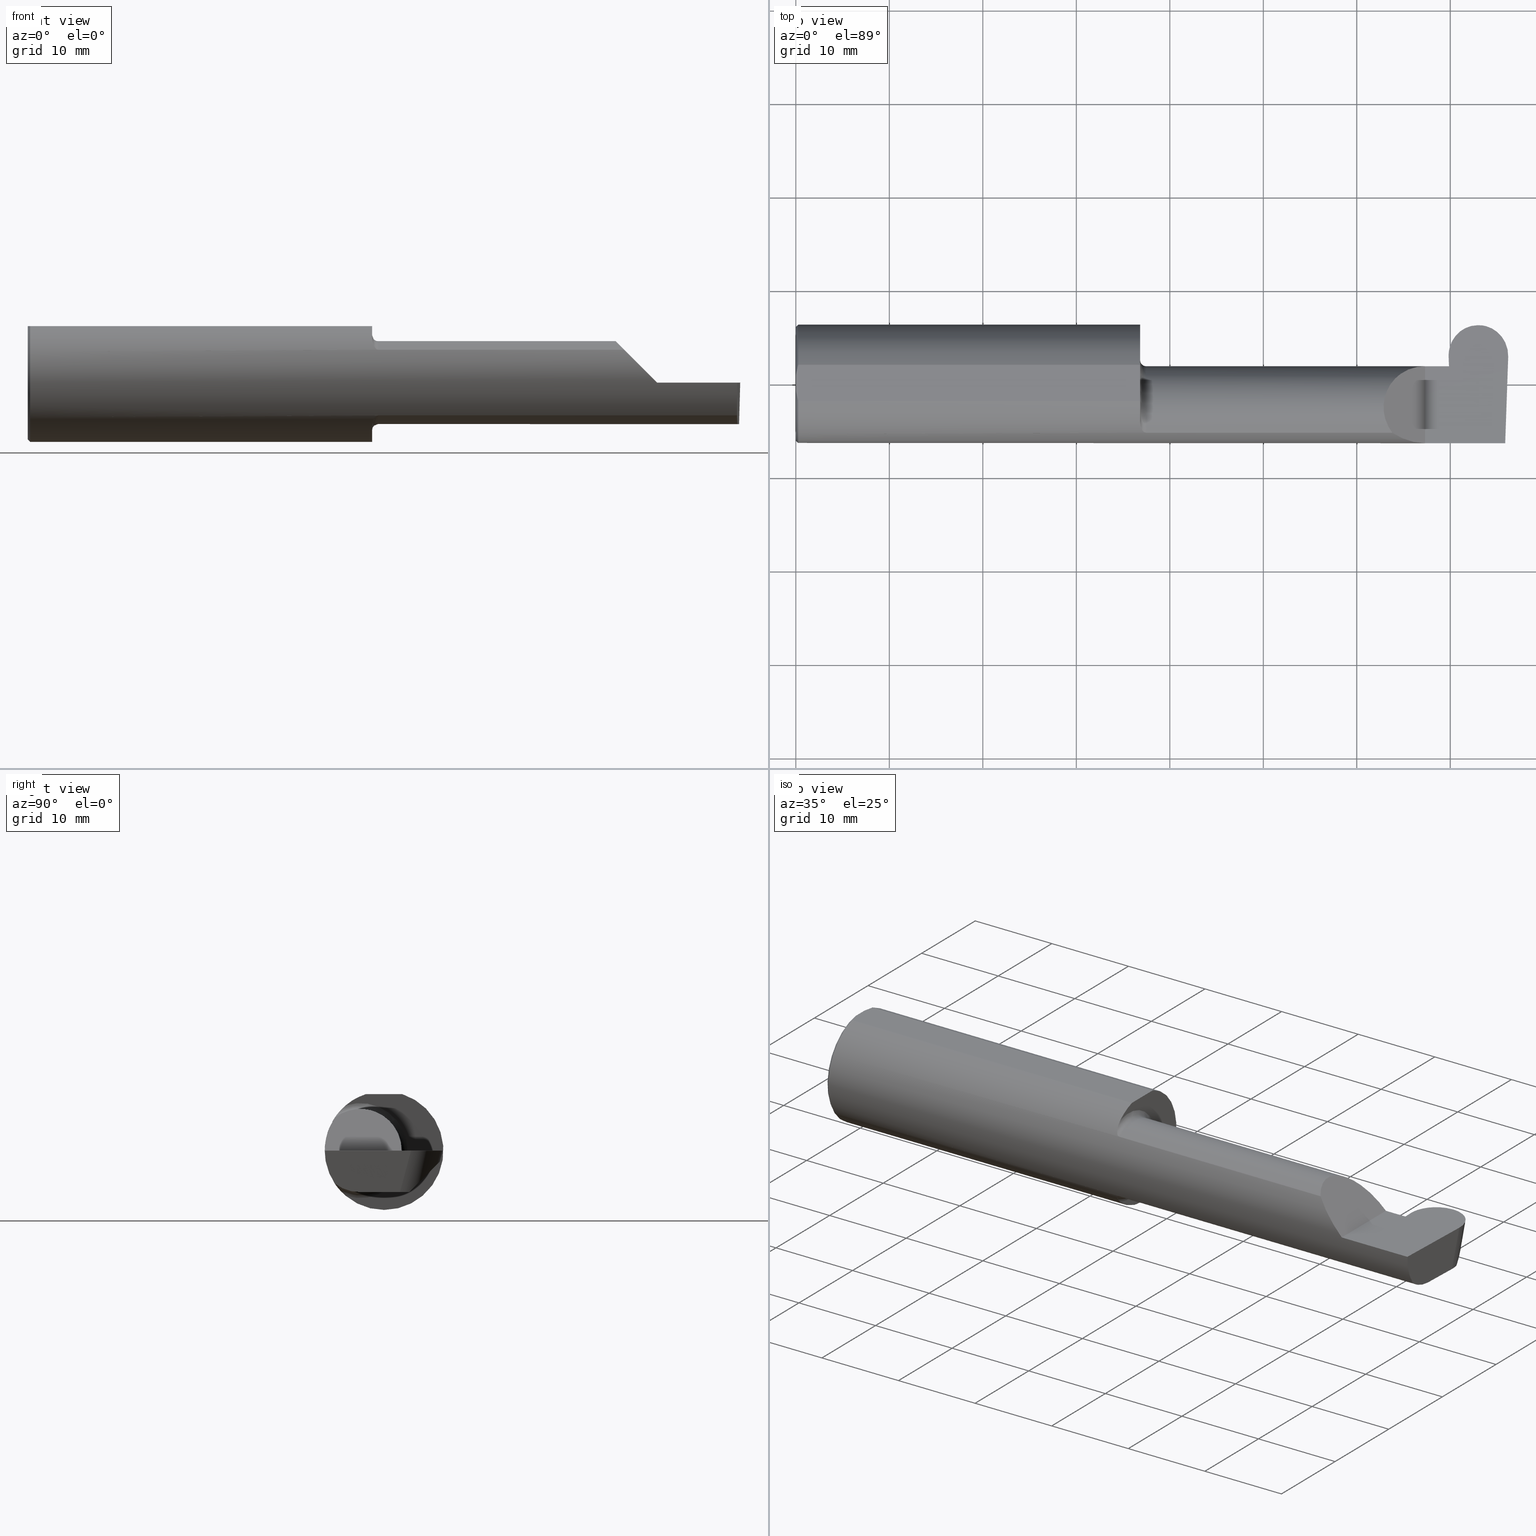
[diagram: canonical four-view strip — front | top / right | iso, engineering-drawing reading convention]
A machine part, canonical four-view strip (front | top / right | iso — engineering-drawing reading convention). The complete STEP part file that produces these views, byte-faithful:
ISO-10303-21;
HEADER;
FILE_DESCRIPTION (( 'STEP AP203' ),
    '1' );
FILE_NAME ('222527-GFR250-24.STEP',
    '2024-06-28T19:29:47',
    ( '' ),
    ( '' ),
    'SwSTEP 2.0',
    'SolidWorks 2024',
    '' );
FILE_SCHEMA (( 'CONFIG_CONTROL_DESIGN' ));
ENDSEC;

DATA;
#1 =( NAMED_UNIT ( * ) SI_UNIT ( $, .STERADIAN. ) SOLID_ANGLE_UNIT ( ) );
#2 = LINE ( 'NONE', #246, #729 ) ;
#3 = ORIENTED_EDGE ( 'NONE', *, *, #547, .F. ) ;
#4 = VECTOR ( 'NONE', #615, 39.37007874015748854 ) ;
#5 = CARTESIAN_POINT ( 'NONE',  ( 1.462579853086619419, -0.2024300470081734082, -0.1464774911482686903 ) ) ;
#6 = CC_DESIGN_APPROVAL ( #37, ( #364 ) ) ;
#7 = EDGE_LOOP ( 'NONE', ( #173, #89, #206, #583 ) ) ;
#8 = CARTESIAN_POINT ( 'NONE',  ( 1.456147634408387459, -0.1932733126899459364, -0.1584637047788198250 ) ) ;
#9 = VERTEX_POINT ( 'NONE', #16 ) ;
#10 = EDGE_CURVE ( 'NONE', #694, #307, #490, .T. ) ;
#11 = CARTESIAN_POINT ( 'NONE',  ( 2.871989500000000195, 0.2348243371481683328, -0.04599999999999999922 ) ) ;
#12 = CC_DESIGN_PERSON_AND_ORGANIZATION_ASSIGNMENT ( #552, #150, ( #297 ) ) ;
#13 = DIRECTION ( 'NONE',  ( -1.000000000000000000, -0.000000000000000000, -0.000000000000000000 ) ) ;
#14 = APPLICATION_PROTOCOL_DEFINITION ( 'international standard', 'config_control_design', 1994, #83 ) ;
#15 = CARTESIAN_POINT ( 'NONE',  ( 1.450000000000000178, 0.000000000000000000, 0.000000000000000000 ) ) ;
#16 = CARTESIAN_POINT ( 'NONE',  ( 2.989253867864499092, -0.1008499999999999119, -0.1750000000000000722 ) ) ;
#17 = ORGANIZATION ( 'UNSPECIFIED', 'UNSPECIFIED', '' ) ;
#18 = VERTEX_POINT ( 'NONE', #254 ) ;
#19 = APPLICATION_PROTOCOL_DEFINITION ( 'international standard', 'config_control_design', 1994, #298 ) ;
#20 = CARTESIAN_POINT ( 'NONE',  ( 1.462616400345755574, -0.2024684335577101590, 0.1464246884265640314 ) ) ;
#21 = DIRECTION ( 'NONE',  ( 0.000000000000000000, 0.000000000000000000, -1.000000000000000000 ) ) ;
#22 = ORIENTED_EDGE ( 'NONE', *, *, #732, .T. ) ;
#23 = PERSON_AND_ORGANIZATION_ROLE ( 'classification_officer' ) ;
#24 = CARTESIAN_POINT ( 'NONE',  ( 2.873967416046592227, 0.2348243371481683328, -0.04599999999999999922 ) ) ;
#25 = PERSON_AND_ORGANIZATION ( #230, #17 ) ;
#26 = MANIFOLD_SOLID_BREP ( 'Fillet1', #255 ) ;
#27 = ORIENTED_EDGE ( 'NONE', *, *, #570, .T. ) ;
#28 = AXIS2_PLACEMENT_3D ( 'NONE', #622, #286, #728 ) ;
#29 = VERTEX_POINT ( 'NONE', #546 ) ;
#30 = COORDINATED_UNIVERSAL_TIME_OFFSET ( 8, 0, .BEHIND. ) ;
#31 = LINE ( 'NONE', #550, #309 ) ;
#32 = ORIENTED_EDGE ( 'NONE', *, *, #130, .T. ) ;
#33 = COORDINATED_UNIVERSAL_TIME_OFFSET ( 8, 0, .BEHIND. ) ;
#34 = ADVANCED_FACE ( 'NONE', ( #362 ), #633, .T. ) ;
#35 = LINE ( 'NONE', #329, #395 ) ;
#36 = DIRECTION ( 'NONE',  ( 0.000000000000000000, -0.2588190451025209060, -0.9659258262890682012 ) ) ;
#37 = APPROVAL ( #202, 'UNSPECIFIED' ) ;
#38 = ORIENTED_EDGE ( 'NONE', *, *, #77, .F. ) ;
#39 = LINE ( 'NONE', #451, #183 ) ;
#40 = EDGE_CURVE ( 'NONE', #396, #605, #603, .T. ) ;
#41 = LINE ( 'NONE', #110, #4 ) ;
#42 = EDGE_LOOP ( 'NONE', ( #626, #417, #556 ) ) ;
#43 = PRODUCT_RELATED_PRODUCT_CATEGORY ( 'detail', '', ( #277 ) ) ;
#44 = FACE_OUTER_BOUND ( 'NONE', #569, .T. ) ;
#45 = VECTOR ( 'NONE', #502, 39.37007874015748854 ) ;
#46 = EDGE_CURVE ( 'NONE', #343, #18, #316, .T. ) ;
#47 = CARTESIAN_POINT ( 'NONE',  ( 1.474999999999999867, -0.1008500000000001201, 0.000000000000000000 ) ) ;
#48 = ORIENTED_EDGE ( 'NONE', *, *, #381, .T. ) ;
#49 = DIRECTION ( 'NONE',  ( -1.000000000000000000, -7.887675390231430346E-17, -0.000000000000000000 ) ) ;
#50 = DIRECTION ( 'NONE',  ( -1.000000000000000000, -7.887675390231430346E-17, -0.000000000000000000 ) ) ;
#51 = VERTEX_POINT ( 'NONE', #85 ) ;
#52 = EDGE_CURVE ( 'NONE', #225, #682, #589, .T. ) ;
#53 = LINE ( 'NONE', #740, #669 ) ;
#54 = CARTESIAN_POINT ( 'NONE',  ( 2.748789500000000441, 0.1262550149847267988, -0.01380122061147884271 ) ) ;
#55 = EDGE_LOOP ( 'NONE', ( #739, #268, #27, #564, #465, #433, #124, #107, #518, #610, #662, #185, #311 ) ) ;
#56 = CARTESIAN_POINT ( 'NONE',  ( 2.750367999175829414, 0.07414999999999984104, 0.000000000000000000 ) ) ;
#57 = AXIS2_PLACEMENT_3D ( 'NONE', #443, #161, #332 ) ;
#58 =( GEOMETRIC_REPRESENTATION_CONTEXT ( 3 ) GLOBAL_UNCERTAINTY_ASSIGNED_CONTEXT ( ( #690 ) ) GLOBAL_UNIT_ASSIGNED_CONTEXT ( ( #358, #252, #1 ) ) REPRESENTATION_CONTEXT ( 'NONE', 'WORKASPACE' ) );
#59 = DIRECTION ( 'NONE',  ( -0.9992386149554828290, 0.03489418134010812550, 0.01745240643728358798 ) ) ;
#60 = ORIENTED_EDGE ( 'NONE', *, *, #256, .T. ) ;
#61 = CARTESIAN_POINT ( 'NONE',  ( 2.871989500000000195, 0.2471499999999999808, 0.000000000000000000 ) ) ;
#62 = EDGE_CURVE ( 'NONE', #300, #731, #79, .T. ) ;
#63 = DIRECTION ( 'NONE',  ( -1.000000000000000000, -7.887675390231430346E-17, 0.000000000000000000 ) ) ;
#64 = VERTEX_POINT ( 'NONE', #320 ) ;
#65 = LENGTH_MEASURE_WITH_UNIT ( LENGTH_MEASURE( 0.02539999999999999897 ), #590 );
#66 = CARTESIAN_POINT ( 'NONE',  ( 2.999923484675441010, 0.1171611899918090643, 0.000000000000000000 ) ) ;
#67 = ORIENTED_EDGE ( 'NONE', *, *, #256, .F. ) ;
#68 = CARTESIAN_POINT ( 'NONE',  ( 2.753013396079577735, 0.1058243371481696476, -0.1750000000000001277 ) ) ;
#69 = AXIS2_PLACEMENT_3D ( 'NONE', #323, #604, #440 ) ;
#70 = AXIS2_PLACEMENT_3D ( 'NONE', #627, #49, #614 ) ;
#71 = CARTESIAN_POINT ( 'NONE',  ( 2.748789500000000441, 0.1195161796598800813, -0.0003276550781925943192 ) ) ;
#72 = EDGE_CURVE ( 'NONE', #413, #689, #392, .T. ) ;
#73 = EDGE_LOOP ( 'NONE', ( #337, #410, #264, #449, #505, #67 ) ) ;
#74 = CARTESIAN_POINT ( 'NONE',  ( 2.650000000000000355, 0.07415000000000000757, 1.898202538678394994E-16 ) ) ;
#75 = CARTESIAN_POINT ( 'NONE',  ( 1.450000000000000178, -0.1616050818046603221, 0.1905487340154980724 ) ) ;
#76 = ORIENTED_EDGE ( 'NONE', *, *, #491, .T. ) ;
#77 = EDGE_CURVE ( 'NONE', #642, #586, #120, .T. ) ;
#78 = DIRECTION ( 'NONE',  ( 1.000000000000000000, 7.887675390231430346E-17, 0.000000000000000000 ) ) ;
#79 = LINE ( 'NONE', #194, #326 ) ;
#80 = ORIENTED_EDGE ( 'NONE', *, *, #52, .F. ) ;
#81 = CALENDAR_DATE ( 2024, 28, 6 ) ;
#82 = CARTESIAN_POINT ( 'NONE',  ( 1.458182335268384477, -0.1972192205116129748, 0.1535061413537211761 ) ) ;
#83 = APPLICATION_CONTEXT ( 'configuration controlled 3d designs of mechanical parts and assemblies' ) ;
#84 = VECTOR ( 'NONE', #168, 39.37007874015748143 ) ;
#85 = CARTESIAN_POINT ( 'NONE',  ( 2.995099234303557623, 0.06653939388036611557, -0.1750000000000001277 ) ) ;
#86 = CIRCLE ( 'NONE', #599, 0.2498499999999999888 ) ;
#87 = LOCAL_TIME ( 12, 29, 47.00000000000000000, #97 ) ;
#88 = DATE_AND_TIME ( #81, #147 ) ;
#89 = ORIENTED_EDGE ( 'NONE', *, *, #238, .F. ) ;
#90 = EDGE_LOOP ( 'NONE', ( #350, #369, #288, #492, #621 ) ) ;
#91 = PERSON_AND_ORGANIZATION ( #230, #17 ) ;
#92 = CARTESIAN_POINT ( 'NONE',  ( 2.650000000000000355, 0.07415000000000000757, 1.898202538678394994E-16 ) ) ;
#93 = EDGE_CURVE ( 'NONE', #682, #601, #259, .T. ) ;
#94 = CARTESIAN_POINT ( 'NONE',  ( 2.987107171508847081, -0.2498499999999999888, 0.000000000000000000 ) ) ;
#95 = AXIS2_PLACEMENT_3D ( 'NONE', #66, #59, #464 ) ;
#96 = ORIENTED_EDGE ( 'NONE', *, *, #314, .T. ) ;
#97 = COORDINATED_UNIVERSAL_TIME_OFFSET ( 8, 0, .BEHIND. ) ;
#98 = CARTESIAN_POINT ( 'NONE',  ( 1.451849548162864600, -0.1805300287242673496, 0.1728462070311781729 ) ) ;
#99 = FACE_OUTER_BOUND ( 'NONE', #235, .T. ) ;
#100 = VERTEX_POINT ( 'NONE', #427 ) ;
#101 = LINE ( 'NONE', #155, #702 ) ;
#102 = ADVANCED_FACE ( 'NONE', ( #487 ), #418, .T. ) ;
#103 = DIRECTION ( 'NONE',  ( 0.9998367324388628408, 0.0003153570480505128921, 0.01806679318280336732 ) ) ;
#104 = ORIENTED_EDGE ( 'NONE', *, *, #46, .T. ) ;
#105 = DIRECTION ( 'NONE',  ( 1.000000000000000000, 0.000000000000000000, 0.000000000000000000 ) ) ;
#106 = EDGE_CURVE ( 'NONE', #396, #333, #711, .T. ) ;
#107 = ORIENTED_EDGE ( 'NONE', *, *, #325, .F. ) ;
#108 = VECTOR ( 'NONE', #661, 39.37007874015748143 ) ;
#109 = DIRECTION ( 'NONE',  ( -1.000000000000000000, -0.000000000000000000, -0.000000000000000000 ) ) ;
#110 = CARTESIAN_POINT ( 'NONE',  ( 2.760318370161228163, -0.1232646843588793423, -0.1750000000000000722 ) ) ;
#111 = ORIENTED_EDGE ( 'NONE', *, *, #439, .T. ) ;
#112 = CARTESIAN_POINT ( 'NONE',  ( 2.999793206199442785, 0.1134305025558126762, 0.000000000000000000 ) ) ;
#113 = DIRECTION ( 'NONE',  ( -0.03489949670249542502, -0.9993908270190959842, 1.222058880457094394E-16 ) ) ;
#114 = EDGE_LOOP ( 'NONE', ( #508, #461, #213, #304 ) ) ;
#115 = CARTESIAN_POINT ( 'NONE',  ( 2.739326706053758276, 0.07414999999999984104, 0.000000000000000000 ) ) ;
#116 = CARTESIAN_POINT ( 'NONE',  ( 2.748789500000000441, 0.1196039745734777809, 3.076441347372056086E-17 ) ) ;
#117 = VERTEX_POINT ( 'NONE', #596 ) ;
#118 = EDGE_CURVE ( 'NONE', #51, #542, #201, .T. ) ;
#119 = DIRECTION ( 'NONE',  ( 1.000000000000000000, 7.887675390231430346E-17, 0.000000000000000000 ) ) ;
#120 =( BOUNDED_CURVE ( )  B_SPLINE_CURVE ( 3, ( #24, #373, #718, #262 ),
 .UNSPECIFIED., .F., .F. ) 
 B_SPLINE_CURVE_WITH_KNOTS ( ( 4, 4 ),
 ( 3.126640370658176682, 4.420746632591429304 ),
 .UNSPECIFIED. ) 
 CURVE ( )  GEOMETRIC_REPRESENTATION_ITEM ( )  RATIONAL_B_SPLINE_CURVE ( ( 1.000000000000000000, 0.8652424962921516638, 0.8652424962921516638, 1.000000000000000000 ) ) 
 REPRESENTATION_ITEM ( '' )  );
#121 = VECTOR ( 'NONE', #421, 39.37007874015748854 ) ;
#122 = CC_DESIGN_APPROVAL ( #154, ( #297 ) ) ;
#123 = DIRECTION ( 'NONE',  ( 1.000000000000000000, 0.000000000000000000, 0.000000000000000000 ) ) ;
#124 = ORIENTED_EDGE ( 'NONE', *, *, #439, .F. ) ;
#125 = CARTESIAN_POINT ( 'NONE',  ( 2.768056554299977989, 0.1849635101964373640, -0.09586082695173156476 ) ) ;
#126 = ADVANCED_FACE ( 'NONE', ( #654 ), #266, .F. ) ;
#127 = CARTESIAN_POINT ( 'NONE',  ( 2.750478392166241903, 0.07404339472834139957, -0.006107411922948607387 ) ) ;
#128 = EDGE_LOOP ( 'NONE', ( #613, #496, #357, #526, #658, #575, #389, #659, #385, #331 ) ) ;
#129 = CARTESIAN_POINT ( 'NONE',  ( 2.752403753671178954, 0.1033802780873585986, -0.1750000000000001277 ) ) ;
#130 = EDGE_CURVE ( 'NONE', #721, #117, #330, .T. ) ;
#131 = FACE_OUTER_BOUND ( 'NONE', #90, .T. ) ;
#132 = B_SPLINE_CURVE_WITH_KNOTS ( 'NONE', 3,
 ( #75, #699, #595, #98, #190, #541, #82, #20, #261, #647, #723, #383, #483, #215 ),
 .UNSPECIFIED., .F., .F.,
 ( 4, 2, 2, 2, 2, 2, 4 ),
 ( 0.0003834465838148139985, 0.0008781406165086578369, 0.001372834649202501513, 0.001867528681896345405, 0.002114875698243272231, 0.002238549206416742040, 0.002362222714590212283 ),
 .UNSPECIFIED. ) ;
#133 = ORIENTED_EDGE ( 'NONE', *, *, #339, .T. ) ;
#134 = FACE_OUTER_BOUND ( 'NONE', #128, .T. ) ;
#135 = DIRECTION ( 'NONE',  ( -0.01806954526206910883, 0.01744955702544859211, 0.9996844524616943506 ) ) ;
#136 = ORIENTED_EDGE ( 'NONE', *, *, #450, .T. ) ;
#137 = EDGE_CURVE ( 'NONE', #689, #29, #165, .T. ) ;
#138 = DIRECTION ( 'NONE',  ( 0.000000000000000000, 1.000000000000000000, 0.000000000000000000 ) ) ;
#139 = DIRECTION ( 'NONE',  ( 1.000000000000000000, 0.000000000000000000, 0.000000000000000000 ) ) ;
#140 = CARTESIAN_POINT ( 'NONE',  ( 2.753013396079577735, 0.1058243371481696476, -0.1750000000000001277 ) ) ;
#141 = CARTESIAN_POINT ( 'NONE',  ( 2.873272513379383497, 0.2278825068156204725, -0.07190726349859134781 ) ) ;
#142 = ORIENTED_EDGE ( 'NONE', *, *, #648, .T. ) ;
#143 = ORIENTED_EDGE ( 'NONE', *, *, #685, .T. ) ;
#144 =( BOUNDED_CURVE ( )  B_SPLINE_CURVE ( 3, ( #386, #568, #560, #281 ),
 .UNSPECIFIED., .F., .F. ) 
 B_SPLINE_CURVE_WITH_KNOTS ( ( 4, 4 ),
 ( -8.881784197001252323E-16, 1.570796326794896780 ),
 .UNSPECIFIED. ) 
 CURVE ( )  GEOMETRIC_REPRESENTATION_ITEM ( )  RATIONAL_B_SPLINE_CURVE ( ( 1.000000000000000000, 0.8047378541243646044, 0.8047378541243646044, 1.000000000000000000 ) ) 
 REPRESENTATION_ITEM ( '' )  );
#145 = ORIENTED_EDGE ( 'NONE', *, *, #660, .T. ) ;
#146 = VECTOR ( 'NONE', #195, 39.37007874015748854 ) ;
#147 = LOCAL_TIME ( 12, 29, 47.00000000000000000, #30 ) ;
#148 = CALENDAR_DATE ( 2024, 28, 6 ) ;
#149 = CARTESIAN_POINT ( 'NONE',  ( 2.111894750000000265, -0.2080850024789289432, -0.1382955322609668858 ) ) ;
#150 = PERSON_AND_ORGANIZATION_ROLE ( 'design_supplier' ) ;
#151 = ADVANCED_FACE ( 'NONE', ( #99 ), #375, .F. ) ;
#152 = CARTESIAN_POINT ( 'NONE',  ( 2.748789500000000441, 0.1195161796598800813, -0.0003276550781925943192 ) ) ;
#153 = CALENDAR_DATE ( 2024, 28, 6 ) ;
#154 = APPROVAL ( #486, 'UNSPECIFIED' ) ;
#155 = CARTESIAN_POINT ( 'NONE',  ( 2.750367999175829414, 0.07414999999999984104, 0.000000000000000000 ) ) ;
#156 = CARTESIAN_POINT ( 'NONE',  ( 0.009999999999999927350, -0.07650098038587520299, 0.2378499999999998671 ) ) ;
#157 = CIRCLE ( 'NONE', #218, 0.2498499999999999888 ) ;
#158 = ORIENTED_EDGE ( 'NONE', *, *, #175, .F. ) ;
#159 = PERSON_AND_ORGANIZATION ( #230, #17 ) ;
#160 = ADVANCED_FACE ( 'NONE', ( #566 ), #612, .F. ) ;
#161 = DIRECTION ( 'NONE',  ( -1.000000000000000000, -0.000000000000000000, -0.000000000000000000 ) ) ;
#162 = CARTESIAN_POINT ( 'NONE',  ( -3.937007874019685528E-05, 0.2471499999999999808, 0.000000000000000000 ) ) ;
#163 = VERTEX_POINT ( 'NONE', #152 ) ;
#164 = FACE_OUTER_BOUND ( 'NONE', #42, .T. ) ;
#165 = LINE ( 'NONE', #335, #84 ) ;
#166 = ORIENTED_EDGE ( 'NONE', *, *, #423, .F. ) ;
#167 = CARTESIAN_POINT ( 'NONE',  ( 2.985913134503198840, -0.2355204011147991605, -0.09701513151466768792 ) ) ;
#168 = DIRECTION ( 'NONE',  ( 1.000000000000000000, 7.887675390231430346E-17, 0.000000000000000000 ) ) ;
#169 = ORIENTED_EDGE ( 'NONE', *, *, #40, .T. ) ;
#170 = TOROIDAL_SURFACE ( 'NONE', #318, 0.1999999999999999833, 0.02499999999999993894 ) ;
#171 = PLANE ( 'NONE',  #28 ) ;
#172 = CARTESIAN_POINT ( 'NONE',  ( 1.464302603425052363, -0.2041009206016212163, -0.1441313430770041759 ) ) ;
#173 = ORIENTED_EDGE ( 'NONE', *, *, #62, .F. ) ;
#174 = DIRECTION ( 'NONE',  ( -0.000000000000000000, 1.000000000000000000, -0.000000000000000000 ) ) ;
#175 = EDGE_CURVE ( 'NONE', #343, #9, #472, .T. ) ;
#176 = CARTESIAN_POINT ( 'NONE',  ( 1.451385488563269988, -0.1808287530430324752, -0.1728790649396288459 ) ) ;
#177 = ORIENTED_EDGE ( 'NONE', *, *, #339, .F. ) ;
#178 = LINE ( 'NONE', #226, #479 ) ;
#179 = CARTESIAN_POINT ( 'NONE',  ( -3.937007874019685528E-05, 0.2348243371481683328, -0.04599999999999999922 ) ) ;
#180 = ORIENTED_EDGE ( 'NONE', *, *, #72, .T. ) ;
#181 = ADVANCED_FACE ( 'NONE', ( #290 ), #212, .F. ) ;
#182 = CARTESIAN_POINT ( 'NONE',  ( 0.000000000000000000, 0.000000000000000000, 0.000000000000000000 ) ) ;
#183 = VECTOR ( 'NONE', #506, 39.37007874015748143 ) ;
#184 = CARTESIAN_POINT ( 'NONE',  ( 0.000000000000000000, 0.000000000000000000, -0.2398500000000001742 ) ) ;
#185 = ORIENTED_EDGE ( 'NONE', *, *, #648, .F. ) ;
#186 = DIRECTION ( 'NONE',  ( 1.000000000000000000, 0.000000000000000000, 0.000000000000000000 ) ) ;
#187 = CARTESIAN_POINT ( 'NONE',  ( 1.450000000000000178, -0.1616050818046603221, -0.1905487340154980724 ) ) ;
#188 = ORIENTED_EDGE ( 'NONE', *, *, #197, .T. ) ;
#189 = FACE_OUTER_BOUND ( 'NONE', #73, .T. ) ;
#190 = CARTESIAN_POINT ( 'NONE',  ( 1.452968662030528879, -0.1849684355203377040, 0.1680843977756269203 ) ) ;
#191 = EDGE_CURVE ( 'NONE', #239, #204, #453, .T. ) ;
#192 = VERTEX_POINT ( 'NONE', #94 ) ;
#193 = DIRECTION ( 'NONE',  ( 0.000000000000000000, -1.000000000000000000, 1.223176342469858371E-16 ) ) ;
#194 = CARTESIAN_POINT ( 'NONE',  ( 0.000000000000000000, 0.000000000000000000, -0.2398500000000001742 ) ) ;
#195 = DIRECTION ( 'NONE',  ( -2.041480612578352346E-17, 0.2588190451025209060, 0.9659258262890682012 ) ) ;
#196 = DIRECTION ( 'NONE',  ( -1.000000000000000000, -0.000000000000000000, -0.000000000000000000 ) ) ;
#197 = EDGE_CURVE ( 'NONE', #100, #445, #41, .T. ) ;
#198 =( BOUNDED_CURVE ( )  B_SPLINE_CURVE ( 3, ( #710, #611, #644, #591 ),
 .UNSPECIFIED., .F., .F. ) 
 B_SPLINE_CURVE_WITH_KNOTS ( ( 4, 4 ),
 ( 4.339337998362998050, 4.645220385064936508 ),
 .UNSPECIFIED. ) 
 CURVE ( )  GEOMETRIC_REPRESENTATION_ITEM ( )  RATIONAL_B_SPLINE_CURVE ( ( 1.000000000000000000, 0.9922181835937360361, 0.9922181835937360361, 1.000000000000000000 ) ) 
 REPRESENTATION_ITEM ( '' )  );
#199 = CARTESIAN_POINT ( 'NONE',  ( 0.000000000000000000, 0.07650098038587520299, 0.2378499999999998671 ) ) ;
#200 = CARTESIAN_POINT ( 'NONE',  ( 2.753585400763539415, -0.1008500000000000091, -0.1750000000000000444 ) ) ;
#201 = LINE ( 'NONE', #321, #700 ) ;
#202 = APPROVAL_STATUS ( 'not_yet_approved' ) ;
#203 = AXIS2_PLACEMENT_3D ( 'NONE', #348, #63, #681 ) ;
#204 = VERTEX_POINT ( 'NONE', #394 ) ;
#205 = EDGE_CURVE ( 'NONE', #204, #601, #361, .T. ) ;
#206 = ORIENTED_EDGE ( 'NONE', *, *, #205, .T. ) ;
#207 = PERSON_AND_ORGANIZATION ( #230, #17 ) ;
#208 = EDGE_CURVE ( 'NONE', #605, #694, #31, .T. ) ;
#209 = DIRECTION ( 'NONE',  ( -7.887675390231430346E-17, 1.000000000000000000, 0.000000000000000000 ) ) ;
#210 = EDGE_LOOP ( 'NONE', ( #529, #279, #436, #400, #177, #671 ) ) ;
#211 = PRODUCT_DEFINITION_SHAPE ( 'NONE', 'NONE',  #364 ) ;
#212 = PLANE ( 'NONE',  #727 ) ;
#213 = ORIENTED_EDGE ( 'NONE', *, *, #399, .T. ) ;
#214 = SHAPE_DEFINITION_REPRESENTATION ( #211, #533 ) ;
#215 = CARTESIAN_POINT ( 'NONE',  ( 1.474999999999999867, -0.2080850024789289432, 0.1382955322609669413 ) ) ;
#216 = CARTESIAN_POINT ( 'NONE',  ( -3.937007874019685528E-05, 0.2471499999999999808, 0.000000000000000000 ) ) ;
#217 = AXIS2_PLACEMENT_3D ( 'NONE', #162, #555, #36 ) ;
#218 = AXIS2_PLACEMENT_3D ( 'NONE', #743, #565, #390 ) ;
#219 = ORIENTED_EDGE ( 'NONE', *, *, #423, .T. ) ;
#220 = LINE ( 'NONE', #223, #45 ) ;
#221 = CARTESIAN_POINT ( 'NONE',  ( 0.000000000000000000, -0.03090954545120560767, 0.2378499999999998671 ) ) ;
#222 = EDGE_LOOP ( 'NONE', ( #188, #22, #639, #219, #636, #294, #271 ) ) ;
#223 = CARTESIAN_POINT ( 'NONE',  ( 2.748789500000000441, 0.1158222753493551166, -0.01411349364336943364 ) ) ;
#224 = DIRECTION ( 'NONE',  ( -0.000000000000000000, 1.000000000000000000, -0.000000000000000000 ) ) ;
#225 = VERTEX_POINT ( 'NONE', #620 ) ;
#226 = CARTESIAN_POINT ( 'NONE',  ( 2.748789500000000441, 0.1454645653348735079, -0.05220861937271876335 ) ) ;
#227 = CARTESIAN_POINT ( 'NONE',  ( 0.000000000000000000, 0.03090954545120574992, 0.2378499999999998671 ) ) ;
#228 = EDGE_LOOP ( 'NONE', ( #666, #133, #482, #478, #169, #532 ) ) ;
#229 = AXIS2_PLACEMENT_3D ( 'NONE', #270, #374, #21 ) ;
#230 = PERSON ( 'UNSPECIFIED', 'UNSPECIFIED', 'UNSPECIFIED', ('UNSPECIFIED'), ('UNSPECIFIED'), ('UNSPECIFIED') ) ;
#231 = VECTOR ( 'NONE', #241, 39.37007874015748143 ) ;
#232 = CARTESIAN_POINT ( 'NONE',  ( 2.873967416046592227, 0.2348243371481683328, -0.04599999999999999922 ) ) ;
#233 = EDGE_CURVE ( 'NONE', #354, #586, #504, .T. ) ;
#234 = CARTESIAN_POINT ( 'NONE',  ( 1.468863362722771182, -0.2068301641248769251, -0.1401678546132362480 ) ) ;
#235 = EDGE_LOOP ( 'NONE', ( #285, #143, #32, #76 ) ) ;
#236 = DIRECTION ( 'NONE',  ( 0.000000000000000000, 1.000000000000000000, 0.000000000000000000 ) ) ;
#237 = CARTESIAN_POINT ( 'NONE',  ( 2.875201260087796307, 0.2471499999999999808, 0.000000000000000000 ) ) ;
#238 = EDGE_CURVE ( 'NONE', #204, #300, #716, .T. ) ;
#239 = VERTEX_POINT ( 'NONE', #221 ) ;
#240 = CARTESIAN_POINT ( 'NONE',  ( 2.752599177285632415, 0.1041970330334761607, -0.1750000000000001277 ) ) ;
#241 = DIRECTION ( 'NONE',  ( -1.000000000000000000, -0.000000000000000000, -0.000000000000000000 ) ) ;
#242 = VERTEX_POINT ( 'NONE', #448 ) ;
#243 = FACE_OUTER_BOUND ( 'NONE', #467, .T. ) ;
#244 = AXIS2_PLACEMENT_3D ( 'NONE', #578, #684, #398 ) ;
#245 = AXIS2_PLACEMENT_3D ( 'NONE', #475, #646, #691 ) ;
#246 = CARTESIAN_POINT ( 'NONE',  ( 0.000000000000000000, -0.07650098038587520299, 0.2378499999999998671 ) ) ;
#247 = EDGE_LOOP ( 'NONE', ( #745, #597, #512, #476 ) ) ;
#248 = DIRECTION ( 'NONE',  ( 1.000000000000000000, 0.000000000000000000, -0.000000000000000000 ) ) ;
#249 = ADVANCED_FACE ( 'NONE', ( #673 ), #170, .F. ) ;
#250 = LINE ( 'NONE', #624, #516 ) ;
#251 = EDGE_LOOP ( 'NONE', ( #104, #3, #48, #180, #291, #726, #616, #697, #707, #158 ) ) ;
#252 =( NAMED_UNIT ( * ) PLANE_ANGLE_UNIT ( ) SI_UNIT ( $, .RADIAN. ) );
#253 = FACE_OUTER_BOUND ( 'NONE', #55, .T. ) ;
#254 = CARTESIAN_POINT ( 'NONE',  ( 1.474999999999999867, -0.2080850024789288044, -0.1382955322609669968 ) ) ;
#255 = CLOSED_SHELL ( 'NONE', ( #34, #593, #344, #474, #600, #712, #736, #678, #102, #249, #391, #534, #463, #151, #126, #160, #272, #181, #724, #267 ) ) ;
#256 = EDGE_CURVE ( 'NONE', #458, #239, #280, .T. ) ;
#257 = VECTOR ( 'NONE', #634, 39.37007874015748143 ) ;
#258 = PLANE ( 'NONE',  #359 ) ;
#259 = LINE ( 'NONE', #199, #715 ) ;
#260 = APPROVAL_STATUS ( 'not_yet_approved' ) ;
#261 = CARTESIAN_POINT ( 'NONE',  ( 1.464343523383979218, -0.2041337200786081940, 0.1440846171672514608 ) ) ;
#262 = CARTESIAN_POINT ( 'NONE',  ( 2.990641147540828104, 0.1058243371481696476, -0.1750000000000001277 ) ) ;
#263 = EDGE_CURVE ( 'NONE', #542, #117, #276, .T. ) ;
#264 = ORIENTED_EDGE ( 'NONE', *, *, #93, .T. ) ;
#265 = DATE_AND_TIME ( #153, #517 ) ;
#266 = PLANE ( 'NONE',  #69 ) ;
#267 = ADVANCED_FACE ( 'NONE', ( #563 ), #404, .T. ) ;
#268 = ORIENTED_EDGE ( 'NONE', *, *, #577, .T. ) ;
#269 = CIRCLE ( 'NONE', #70, 0.1750000000000000444 ) ;
#270 = CARTESIAN_POINT ( 'NONE',  ( 0.000000000000000000, 0.000000000000000000, 0.000000000000000000 ) ) ;
#271 = ORIENTED_EDGE ( 'NONE', *, *, #602, .T. ) ;
#272 = ADVANCED_FACE ( 'NONE', ( #131 ), #641, .F. ) ;
#273 = CARTESIAN_POINT ( 'NONE',  ( -3.937007874019685528E-05, 0.1058243371481696476, -0.1750000000000001277 ) ) ;
#274 = VERTEX_POINT ( 'NONE', #688 ) ;
#275 = DATE_AND_TIME ( #497, #87 ) ;
#276 =( BOUNDED_CURVE ( )  B_SPLINE_CURVE ( 3, ( #412, #582, #572, #237 ),
 .UNSPECIFIED., .F., .F. ) 
 B_SPLINE_CURVE_WITH_KNOTS ( ( 4, 4 ),
 ( 1.637964922114649946, 3.237953570749840360 ),
 .UNSPECIFIED. ) 
 CURVE ( )  GEOMETRIC_REPRESENTATION_ITEM ( )  RATIONAL_B_SPLINE_CURVE ( ( 1.000000000000000000, 0.7978071872141911935, 0.7978071872141911935, 1.000000000000000000 ) ) 
 REPRESENTATION_ITEM ( '' )  );
#277 = PRODUCT ( '222527-GFR250-24', '222527-GFR250-24', '', ( #301 ) ) ;
#278 = CARTESIAN_POINT ( 'NONE',  ( 2.754531504291869659, -2.688765469242836659, -0.1821862048796526190 ) ) ;
#279 = ORIENTED_EDGE ( 'NONE', *, *, #685, .F. ) ;
#280 = B_SPLINE_CURVE_WITH_KNOTS ( 'NONE', 3,
 ( #156, #456, #494, #720 ),
 .UNSPECIFIED., .F., .F.,
 ( 4, 4 ),
 ( 0.01317593029100226111, 0.01435802289191457325 ),
 .UNSPECIFIED. ) ;
#281 = CARTESIAN_POINT ( 'NONE',  ( 2.748789500000000441, 0.1196039745734777809, 3.076441347372056086E-17 ) ) ;
#282 = DIMENSIONAL_EXPONENTS ( 1.000000000000000000, 0.000000000000000000, 0.000000000000000000, 0.000000000000000000, 0.000000000000000000, 0.000000000000000000, 0.000000000000000000 ) ;
#283 = DIRECTION ( 'NONE',  ( -0.03489949670249486990, 0.9993908270190959842, -0.000000000000000000 ) ) ;
#284 = CIRCLE ( 'NONE', #371, 0.2498499999999999888 ) ;
#285 = ORIENTED_EDGE ( 'NONE', *, *, #314, .F. ) ;
#286 = DIRECTION ( 'NONE',  ( -0.7071067811865439090, 0.000000000000000000, -0.7071067811865511255 ) ) ;
#287 = DIRECTION ( 'NONE',  ( 7.887675390231430346E-17, -1.000000000000000000, 0.000000000000000000 ) ) ;
#288 = ORIENTED_EDGE ( 'NONE', *, *, #528, .T. ) ;
#289 = DIRECTION ( 'NONE',  ( -0.0003154085283454350426, 0.9999999502587288980, -1.223178646569383192E-16 ) ) ;
#290 = FACE_OUTER_BOUND ( 'NONE', #347, .T. ) ;
#291 = ORIENTED_EDGE ( 'NONE', *, *, #137, .T. ) ;
#292 = CARTESIAN_POINT ( 'NONE',  ( 2.739291170963205069, 0.07411446490944702259, -0.002035803974316283561 ) ) ;
#293 = CARTESIAN_POINT ( 'NONE',  ( 2.752403753671178954, 0.1033802780873585986, -0.1750000000000001277 ) ) ;
#294 = ORIENTED_EDGE ( 'NONE', *, *, #387, .T. ) ;
#295 = DESIGN_CONTEXT ( 'detailed design', #298, 'design' ) ;
#296 = DIRECTION ( 'NONE',  ( 0.000000000000000000, -0.9998476951563912696, 0.01745240643728358451 ) ) ;
#297 = PRODUCT_DEFINITION_FORMATION_WITH_SPECIFIED_SOURCE ( 'ANY', '', #277, .NOT_KNOWN. ) ;
#298 = APPLICATION_CONTEXT ( 'configuration controlled 3d designs of mechanical parts and assemblies' ) ;
#299 = LINE ( 'NONE', #179, #257 ) ;
#300 = VERTEX_POINT ( 'NONE', #184 ) ;
#301 = MECHANICAL_CONTEXT ( 'NONE', #83, 'mechanical' ) ;
#302 =( BOUNDED_CURVE ( )  B_SPLINE_CURVE ( 3, ( #71, #54, #521, #293 ),
 .UNSPECIFIED., .F., .F. ) 
 B_SPLINE_CURVE_WITH_KNOTS ( ( 4, 4 ),
 ( 0.02920211248569833454, 0.2720232217214049175 ),
 .UNSPECIFIED. ) 
 CURVE ( )  GEOMETRIC_REPRESENTATION_ITEM ( )  RATIONAL_B_SPLINE_CURVE ( ( 1.000000000000000000, 0.9950925250835043201, 0.9950925250835043201, 1.000000000000000000 ) ) 
 REPRESENTATION_ITEM ( '' )  );
#303 = CARTESIAN_POINT ( 'NONE',  ( 2.111894750000000265, -0.2080850024789289432, 0.1382955322609668858 ) ) ;
#304 = ORIENTED_EDGE ( 'NONE', *, *, #450, .F. ) ;
#305 = CARTESIAN_POINT ( 'NONE',  ( 0.009999999999999927350, 0.000000000000000000, -0.2498499999999999888 ) ) ;
#306 = CARTESIAN_POINT ( 'NONE',  ( 1.471700027347579098, -0.2077785947292766777, -0.1387580622202827796 ) ) ;
#307 = VERTEX_POINT ( 'NONE', #116 ) ;
#308 = VECTOR ( 'NONE', #209, 39.37007874015748143 ) ;
#309 = VECTOR ( 'NONE', #283, 39.37007874015748143 ) ;
#310 = CARTESIAN_POINT ( 'NONE',  ( 1.473318040126429640, -0.2080850024789289432, -0.1382955322609669135 ) ) ;
#311 = ORIENTED_EDGE ( 'NONE', *, *, #399, .F. ) ;
#312 = CARTESIAN_POINT ( 'NONE',  ( 2.739255635872652750, 0.07407892981889421802, -0.004071607948632567989 ) ) ;
#313 = CARTESIAN_POINT ( 'NONE',  ( 2.748789500000000441, -0.2500000000000000555, 3.076441347372055469E-17 ) ) ;
#314 = EDGE_CURVE ( 'NONE', #64, #642, #299, .T. ) ;
#315 = CARTESIAN_POINT ( 'NONE',  ( 3.402190948718818664, -0.1008499999999999119, -0.1750000000000000722 ) ) ;
#316 = LINE ( 'NONE', #149, #618 ) ;
#317 = AXIS2_PLACEMENT_3D ( 'NONE', #670, #665, #388 ) ;
#318 = AXIS2_PLACEMENT_3D ( 'NONE', #47, #50, #287 ) ;
#319 = CARTESIAN_POINT ( 'NONE',  ( 2.552984868485331571, -0.2355204011147991605, 0.09701513151466779894 ) ) ;
#320 = CARTESIAN_POINT ( 'NONE',  ( 2.871989500000000195, 0.2348243371481683328, -0.04599999999999999922 ) ) ;
#321 = CARTESIAN_POINT ( 'NONE',  ( 2.999818293584536999, 0.1136811166044124355, 0.0009353043624648263573 ) ) ;
#322 = PERSON_AND_ORGANIZATION ( #230, #17 ) ;
#323 = CARTESIAN_POINT ( 'NONE',  ( -3.937007874019685528E-05, 0.2348243371481683328, -0.04599999999999999922 ) ) ;
#324 = PERSON_AND_ORGANIZATION_ROLE ( 'creator' ) ;
#325 = EDGE_CURVE ( 'NONE', #458, #225, #2, .T. ) ;
#326 = VECTOR ( 'NONE', #714, 39.37007874015748143 ) ;
#327 = CARTESIAN_POINT ( 'NONE',  ( 0.000000000000000000, 0.000000000000000000, 0.000000000000000000 ) ) ;
#328 = DATE_TIME_ROLE ( 'creation_date' ) ;
#329 = CARTESIAN_POINT ( 'NONE',  ( 2.750367999175829414, 0.07414999999999984104, -4.822780832875165838E-21 ) ) ;
#330 = LINE ( 'NONE', #216, #378 ) ;
#331 = ORIENTED_EDGE ( 'NONE', *, *, #263, .T. ) ;
#332 = DIRECTION ( 'NONE',  ( 0.000000000000000000, 0.000000000000000000, -1.000000000000000000 ) ) ;
#333 = VERTEX_POINT ( 'NONE', #585 ) ;
#334 = CARTESIAN_POINT ( 'NONE',  ( 2.986241469175252128, -0.2498499999999999610, -0.04956584089959703565 ) ) ;
#335 = CARTESIAN_POINT ( 'NONE',  ( 1.450000000000000178, 0.07414999999999991043, 1.898202538678394994E-16 ) ) ;
#336 = APPROVAL_PERSON_ORGANIZATION ( #598, #37, #370 ) ;
#337 = ORIENTED_EDGE ( 'NONE', *, *, #325, .T. ) ;
#338 = CARTESIAN_POINT ( 'NONE',  ( 2.753585465288466594, -0.1010545757111813159, -0.1750000000000000722 ) ) ;
#339 = EDGE_CURVE ( 'NONE', #163, #445, #302, .T. ) ;
#340 = DIRECTION ( 'NONE',  ( -1.000000000000000000, -0.000000000000000000, -0.000000000000000000 ) ) ;
#341 = ORIENTED_EDGE ( 'NONE', *, *, #263, .F. ) ;
#342 = CARTESIAN_POINT ( 'NONE',  ( 2.750367999175829414, 0.07414999999999984104, 0.000000000000000000 ) ) ;
#343 = VERTEX_POINT ( 'NONE', #466 ) ;
#344 = ADVANCED_FACE ( 'NONE', ( #692 ), #515, .T. ) ;
#345 = CARTESIAN_POINT ( 'NONE',  ( 1.450000000000000178, 0.2498499999999998500, 0.000000000000000000 ) ) ;
#346 = DIRECTION ( 'NONE',  ( -1.000000000000000000, -7.887675390231430346E-17, -0.000000000000000000 ) ) ;
#347 = EDGE_LOOP ( 'NONE', ( #551, #403, #382 ) ) ;
#348 = CARTESIAN_POINT ( 'NONE',  ( 2.748789500000000441, 0.2498499999999999610, 0.000000000000000000 ) ) ;
#349 =( BOUNDED_CURVE ( )  B_SPLINE_CURVE ( 3, ( #672, #167, #334, #632 ),
 .UNSPECIFIED., .F., .T. ) 
 B_SPLINE_CURVE_WITH_KNOTS ( ( 4, 4 ),
 ( 6.160376845738950280, 6.746954780470608704 ),
 .UNSPECIFIED. ) 
 CURVE ( )  GEOMETRIC_REPRESENTATION_ITEM ( )  RATIONAL_B_SPLINE_CURVE ( ( 1.000000000000000000, 0.9715321379117538569, 0.9715321379117538569, 1.000000000000000000 ) ) 
 REPRESENTATION_ITEM ( '' )  );
#350 = ORIENTED_EDGE ( 'NONE', *, *, #415, .F. ) ;
#351 = CARTESIAN_POINT ( 'NONE',  ( 3.000000000000000444, -0.2500000000000000555, 0.000000000000000000 ) ) ;
#352 = B_SPLINE_CURVE_WITH_KNOTS ( 'NONE', 3,
 ( #416, #312, #292, #115 ),
 .UNSPECIFIED., .F., .F.,
 ( 4, 4 ),
 ( 0.000000000000000000, 1.000000000000000000 ),
 .UNSPECIFIED. ) ;
#353 = CARTESIAN_POINT ( 'NONE',  ( 1.474999999999999867, -0.2080850024789288044, -0.1382955322609669968 ) ) ;
#354 = VERTEX_POINT ( 'NONE', #741 ) ;
#355 = CARTESIAN_POINT ( 'NONE',  ( 1.450000000000000178, 0.07650098038587520299, 0.2378499999999998671 ) ) ;
#356 = LINE ( 'NONE', #524, #231 ) ;
#357 = ORIENTED_EDGE ( 'NONE', *, *, #10, .F. ) ;
#358 =( CONVERSION_BASED_UNIT ( 'INCH', #65 ) LENGTH_UNIT ( ) NAMED_UNIT ( #282 ) );
#359 = AXIS2_PLACEMENT_3D ( 'NONE', #315, #557, #193 ) ;
#360 = DIRECTION ( 'NONE',  ( -1.000000000000000000, -7.887675390231430346E-17, -0.000000000000000000 ) ) ;
#361 = B_SPLINE_CURVE_WITH_KNOTS ( 'NONE', 3,
 ( #227, #609, #676, #507 ),
 .UNSPECIFIED., .F., .F.,
 ( 4, 4 ),
 ( 0.01593449416844765903, 0.01712021724825598876 ),
 .UNSPECIFIED. ) ;
#362 = FACE_OUTER_BOUND ( 'NONE', #406, .T. ) ;
#363 = LINE ( 'NONE', #411, #146 ) ;
#364 = PRODUCT_DEFINITION ( 'UNKNOWN', '', #297, #295 ) ;
#365 = CARTESIAN_POINT ( 'NONE',  ( 1.450000000000000178, 0.07404339472834153835, -0.006107411922941730943 ) ) ;
#366 = DIRECTION ( 'NONE',  ( -1.224646799147351975E-16, 0.000000000000000000, -1.000000000000000000 ) ) ;
#367 = CARTESIAN_POINT ( 'NONE',  ( 2.650000000000000355, -0.2498499999999999610, 4.286263797015729199E-17 ) ) ;
#368 = DIRECTION ( 'NONE',  ( 0.000000000000000000, 0.000000000000000000, -1.000000000000000000 ) ) ;
#369 = ORIENTED_EDGE ( 'NONE', *, *, #118, .T. ) ;
#370 = APPROVAL_ROLE ( '' ) ;
#371 = AXIS2_PLACEMENT_3D ( 'NONE', #401, #105, #462 ) ;
#372 = AXIS2_PLACEMENT_3D ( 'NONE', #351, #366, #643 ) ;
#373 = CARTESIAN_POINT ( 'NONE',  ( 2.932279805067560030, 0.2348243371481684993, -0.04599999999999983963 ) ) ;
#374 = DIRECTION ( 'NONE',  ( 1.000000000000000000, 0.000000000000000000, 0.000000000000000000 ) ) ;
#375 = PLANE ( 'NONE',  #217 ) ;
#376 = APPROVAL_DATE_TIME ( #265, #154 ) ;
#377 = DIRECTION ( 'NONE',  ( 1.000000000000000000, -0.000000000000000000, -0.000000000000000000 ) ) ;
#378 = VECTOR ( 'NONE', #444, 39.37007874015748143 ) ;
#379 = CIRCLE ( 'NONE', #57, 0.2398500000000001742 ) ;
#380 = SECURITY_CLASSIFICATION ( '', '', #655 ) ;
#381 = EDGE_CURVE ( 'NONE', #645, #413, #744, .T. ) ;
#382 = ORIENTED_EDGE ( 'NONE', *, *, #602, .F. ) ;
#383 = CARTESIAN_POINT ( 'NONE',  ( 1.471718393013768722, -0.2077830475237239516, 0.1387513848711938724 ) ) ;
#384 = CARTESIAN_POINT ( 'NONE',  ( 2.986150208451177512, -0.2080850024789288599, -0.1382955322609668858 ) ) ;
#385 = ORIENTED_EDGE ( 'NONE', *, *, #528, .F. ) ;
#386 = CARTESIAN_POINT ( 'NONE',  ( 2.871989500000000195, 0.2471499999999999808, 0.000000000000000000 ) ) ;
#387 = EDGE_CURVE ( 'NONE', #9, #242, #356, .T. ) ;
#388 = DIRECTION ( 'NONE',  ( -0.03489949670249486297, 0.9993908270190959842, 0.000000000000000000 ) ) ;
#389 = ORIENTED_EDGE ( 'NONE', *, *, #631, .F. ) ;
#390 = DIRECTION ( 'NONE',  ( 0.000000000000000000, 0.000000000000000000, -1.000000000000000000 ) ) ;
#391 = ADVANCED_FACE ( 'NONE', ( #409 ), #629, .T. ) ;
#392 =( BOUNDED_CURVE ( )  B_SPLINE_CURVE ( 3, ( #435, #484, #653, #92 ),
 .UNSPECIFIED., .F., .T. ) 
 B_SPLINE_CURVE_WITH_KNOTS ( ( 4, 4 ),
 ( 5.623622464215682015, 7.853981633974482790 ),
 .UNSPECIFIED. ) 
 CURVE ( )  GEOMETRIC_REPRESENTATION_ITEM ( )  RATIONAL_B_SPLINE_CURVE ( ( 1.000000000000000000, 0.6266774836123999437, 0.6266774836123999437, 1.000000000000000000 ) ) 
 REPRESENTATION_ITEM ( '' )  );
#393 = AXIS2_PLACEMENT_3D ( 'NONE', #649, #139, #368 ) ;
#394 = CARTESIAN_POINT ( 'NONE',  ( 0.000000000000000000, 0.03090954545120574992, 0.2378499999999998671 ) ) ;
#395 = VECTOR ( 'NONE', #135, 39.37007874015748143 ) ;
#396 = VERTEX_POINT ( 'NONE', #127 ) ;
#397 = DIRECTION ( 'NONE',  ( -7.887675390231430346E-17, 1.000000000000000000, 0.000000000000000000 ) ) ;
#398 = DIRECTION ( 'NONE',  ( 0.000000000000000000, -0.9659258262890683122, 0.2588190451025209060 ) ) ;
#399 = EDGE_CURVE ( 'NONE', #18, #544, #405, .T. ) ;
#400 = ORIENTED_EDGE ( 'NONE', *, *, #732, .F. ) ;
#401 = CARTESIAN_POINT ( 'NONE',  ( 0.009999999999999927350, 0.000000000000000000, 0.000000000000000000 ) ) ;
#402 = DIRECTION ( 'NONE',  ( 0.000000000000000000, -1.000000000000000000, 0.000000000000000000 ) ) ;
#403 = ORIENTED_EDGE ( 'NONE', *, *, #446, .F. ) ;
#404 = CYLINDRICAL_SURFACE ( 'NONE', #244, 0.1232000000000000178 ) ;
#405 = B_SPLINE_CURVE_WITH_KNOTS ( 'NONE', 3,
 ( #353, #310, #306, #234, #460, #172, #5, #471, #8, #176, #696, #187 ),
 .UNSPECIFIED., .F., .F.,
 ( 4, 2, 2, 2, 2, 4 ),
 ( 1.964491429042083594E-07, 0.0001260981470478296398, 0.0002519998449527550998, 0.0005038032407626199518, 0.001007410032382348788, 0.002014623615621811449 ),
 .UNSPECIFIED. ) ;
#406 = EDGE_LOOP ( 'NONE', ( #422, #630, #674, #60 ) ) ;
#407 = AXIS2_PLACEMENT_3D ( 'NONE', #638, #346, #402 ) ;
#408 = DIRECTION ( 'NONE',  ( 0.000000000000000000, 0.000000000000000000, -1.000000000000000000 ) ) ;
#409 = FACE_OUTER_BOUND ( 'NONE', #251, .T. ) ;
#410 = ORIENTED_EDGE ( 'NONE', *, *, #52, .T. ) ;
#411 = CARTESIAN_POINT ( 'NONE',  ( 2.871989500000000195, 0.2471499999999999808, -9.108897217503114900E-18 ) ) ;
#412 = CARTESIAN_POINT ( 'NONE',  ( 2.999793206199442785, 0.1134305025558126762, 0.000000000000000000 ) ) ;
#413 = VERTEX_POINT ( 'NONE', #531 ) ;
#414 = PLANE ( 'NONE',  #703 ) ;
#415 = EDGE_CURVE ( 'NONE', #51, #9, #250, .T. ) ;
#416 = CARTESIAN_POINT ( 'NONE',  ( 2.739220100782099543, 0.07404339472834139957, -0.006107411922948844177 ) ) ;
#417 = ORIENTED_EDGE ( 'NONE', *, *, #493, .F. ) ;
#418 = CONICAL_SURFACE ( 'NONE', #393, 0.2398500000000001742, 0.7853981633974431720 ) ;
#419 = CARTESIAN_POINT ( 'NONE',  ( 1.450000000000000178, -0.1616050818046603221, 0.1905487340154980724 ) ) ;
#420 = CC_DESIGN_PERSON_AND_ORGANIZATION_ASSIGNMENT ( #159, #663, ( #364 ) ) ;
#421 = DIRECTION ( 'NONE',  ( -0.02590004391968267136, -0.2587322210431823866, -0.9656017944882974158 ) ) ;
#422 = ORIENTED_EDGE ( 'NONE', *, *, #520, .F. ) ;
#423 = EDGE_CURVE ( 'NONE', #586, #51, #198, .T. ) ;
#424 =( BOUNDED_CURVE ( )  B_SPLINE_CURVE ( 3, ( #200, #537, #481, #607 ),
 .UNSPECIFIED., .F., .F. ) 
 B_SPLINE_CURVE_WITH_KNOTS ( ( 4, 4 ),
 ( 3.159045946109731773, 4.694935687864679963 ),
 .UNSPECIFIED. ) 
 CURVE ( )  GEOMETRIC_REPRESENTATION_ITEM ( )  RATIONAL_B_SPLINE_CURVE ( ( 1.000000000000000000, 0.8128932002257817091, 0.8128932002257817091, 1.000000000000000000 ) ) 
 REPRESENTATION_ITEM ( '' )  );
#425 = DIRECTION ( 'NONE',  ( 0.000000000000000000, 0.000000000000000000, 1.000000000000000000 ) ) ;
#426 = CARTESIAN_POINT ( 'NONE',  ( 2.752403753671178954, 0.1033802780873585986, -0.1750000000000001277 ) ) ;
#427 = CARTESIAN_POINT ( 'NONE',  ( 2.753531167726741113, 0.07109536363756174815, -0.1750000000000001277 ) ) ;
#428 = PERSON_AND_ORGANIZATION ( #230, #17 ) ;
#429 = DIRECTION ( 'NONE',  ( 0.02590004391968268524, 0.2587322210431824421, 0.9656017944882975268 ) ) ;
#430 = APPROVAL_DATE_TIME ( #88, #37 ) ;
#431 = CC_DESIGN_APPROVAL ( #442, ( #380 ) ) ;
#432 = CARTESIAN_POINT ( 'NONE',  ( 1.450000000000000178, 0.2498499999999996835, 0.2378499999999998671 ) ) ;
#433 = ORIENTED_EDGE ( 'NONE', *, *, #499, .F. ) ;
#434 = APPROVAL_ROLE ( '' ) ;
#435 = CARTESIAN_POINT ( 'NONE',  ( 2.511704467739031887, -0.2080850024789288599, 0.1382955322609669413 ) ) ;
#436 = ORIENTED_EDGE ( 'NONE', *, *, #708, .F. ) ;
#437 = DATE_AND_TIME ( #148, #680 ) ;
#438 = CARTESIAN_POINT ( 'NONE',  ( 0.000000000000000000, 0.000000000000000000, 0.000000000000000000 ) ) ;
#439 = EDGE_CURVE ( 'NONE', #225, #719, #503, .T. ) ;
#440 = DIRECTION ( 'NONE',  ( 0.000000000000000000, -0.7071067811865435759, -0.7071067811865514585 ) ) ;
#441 = ORIENTED_EDGE ( 'NONE', *, *, #191, .T. ) ;
#442 = APPROVAL ( #260, 'UNSPECIFIED' ) ;
#443 = CARTESIAN_POINT ( 'NONE',  ( 0.000000000000000000, 0.000000000000000000, 0.000000000000000000 ) ) ;
#444 = DIRECTION ( 'NONE',  ( 1.000000000000000000, -0.000000000000000000, -0.000000000000000000 ) ) ;
#445 = VERTEX_POINT ( 'NONE', #426 ) ;
#446 = EDGE_CURVE ( 'NONE', #100, #396, #35, .T. ) ;
#447 = CARTESIAN_POINT ( 'NONE',  ( 1.450000000000000178, 0.000000000000000000, 0.000000000000000000 ) ) ;
#448 = CARTESIAN_POINT ( 'NONE',  ( 2.753585400763539415, -0.1008500000000000091, -0.1750000000000000444 ) ) ;
#449 = ORIENTED_EDGE ( 'NONE', *, *, #205, .F. ) ;
#450 = EDGE_CURVE ( 'NONE', #719, #544, #693, .T. ) ;
#451 = CARTESIAN_POINT ( 'NONE',  ( 2.999923484675441010, 0.1171611899918090643, 0.000000000000000000 ) ) ;
#452 =( BOUNDED_CURVE ( )  B_SPLINE_CURVE ( 3, ( #129, #240, #698, #68 ),
 .UNSPECIFIED., .F., .F. ) 
 B_SPLINE_CURVE_WITH_KNOTS ( ( 4, 4 ),
 ( 4.955210089620395664, 4.975001206325426750 ),
 .UNSPECIFIED. ) 
 CURVE ( )  GEOMETRIC_REPRESENTATION_ITEM ( )  RATIONAL_B_SPLINE_CURVE ( ( 1.000000000000000000, 0.9999673595746501054, 0.9999673595746501054, 1.000000000000000000 ) ) 
 REPRESENTATION_ITEM ( '' )  );
#453 = LINE ( 'NONE', #558, #540 ) ;
#454 = ORIENTED_EDGE ( 'NONE', *, *, #491, .F. ) ;
#455 = CARTESIAN_POINT ( 'NONE',  ( 2.990641147540828104, 0.1058243371481696476, -0.1750000000000001277 ) ) ;
#456 = CARTESIAN_POINT ( 'NONE',  ( 0.005459900170181729989, -0.06167314502012864741, 0.2378499999999998671 ) ) ;
#457 = VECTOR ( 'NONE', #289, 39.37007874015748854 ) ;
#458 = VERTEX_POINT ( 'NONE', #498 ) ;
#459 = CARTESIAN_POINT ( 'NONE',  ( 1.474999999999999867, -0.2080850024789289432, 0.1382955322609669413 ) ) ;
#460 = CARTESIAN_POINT ( 'NONE',  ( 1.467611663768900065, -0.2061921161193828456, -0.1411075319999378908 ) ) ;
#461 = ORIENTED_EDGE ( 'NONE', *, *, #547, .T. ) ;
#462 = DIRECTION ( 'NONE',  ( 0.000000000000000000, 0.000000000000000000, -1.000000000000000000 ) ) ;
#463 = ADVANCED_FACE ( 'NONE', ( #477 ), #258, .F. ) ;
#464 = DIRECTION ( 'NONE',  ( -0.03489949670249542502, -0.9993908270190959842, 0.000000000000000000 ) ) ;
#465 = ORIENTED_EDGE ( 'NONE', *, *, #381, .F. ) ;
#466 = CARTESIAN_POINT ( 'NONE',  ( 2.986150208451177512, -0.2080850024789288599, -0.1382955322609668858 ) ) ;
#467 = EDGE_LOOP ( 'NONE', ( #341, #701, #166, #38, #454 ) ) ;
#468 = AXIS2_PLACEMENT_3D ( 'NONE', #182, #186, #408 ) ;
#469 = EDGE_CURVE ( 'NONE', #242, #396, #424, .T. ) ;
#470 = CARTESIAN_POINT ( 'NONE',  ( 2.748789500000000441, 0.1193523022059226057, 0.000000000000000000 ) ) ;
#471 = CARTESIAN_POINT ( 'NONE',  ( 1.458176740666625504, -0.1972027065478071661, -0.1535263573771916135 ) ) ;
#472 =( BOUNDED_CURVE ( )  B_SPLINE_CURVE ( 3, ( #384, #725, #500, #511 ),
 .UNSPECIFIED., .F., .F. ) 
 B_SPLINE_CURVE_WITH_KNOTS ( ( 4, 4 ),
 ( 0.4474640105399709800, 1.107026853503876085 ),
 .UNSPECIFIED. ) 
 CURVE ( )  GEOMETRIC_REPRESENTATION_ITEM ( )  RATIONAL_B_SPLINE_CURVE ( ( 1.000000000000000000, 0.9640754331822831702, 0.9640754331822831702, 1.000000000000000000 ) ) 
 REPRESENTATION_ITEM ( '' )  );
#473 = ORIENTED_EDGE ( 'NONE', *, *, #10, .T. ) ;
#474 = ADVANCED_FACE ( 'NONE', ( #253 ), #535, .T. ) ;
#475 = CARTESIAN_POINT ( 'NONE',  ( 2.873272513379382609, 0.1066588156163424256, -0.03942547333822495753 ) ) ;
#476 = ORIENTED_EDGE ( 'NONE', *, *, #509, .T. ) ;
#477 = FACE_OUTER_BOUND ( 'NONE', #222, .T. ) ;
#478 = ORIENTED_EDGE ( 'NONE', *, *, #446, .T. ) ;
#479 = VECTOR ( 'NONE', #737, 39.37007874015748143 ) ;
#480 = APPROVAL_PERSON_ORGANIZATION ( #91, #154, #606 ) ;
#481 = CARTESIAN_POINT ( 'NONE',  ( 2.752279901668356121, 0.07056399972053571668, -0.1057442486376065499 ) ) ;
#482 = ORIENTED_EDGE ( 'NONE', *, *, #197, .F. ) ;
#483 = CARTESIAN_POINT ( 'NONE',  ( 1.473329956043142319, -0.2080850024798589215, 0.1382955322595677272 ) ) ;
#484 = CARTESIAN_POINT ( 'NONE',  ( 2.409263745716142324, -0.07597241004310675838, 0.2407362542838553388 ) ) ;
#485 = ORIENTED_EDGE ( 'NONE', *, *, #554, .F. ) ;
#486 = APPROVAL_STATUS ( 'not_yet_approved' ) ;
#487 = FACE_OUTER_BOUND ( 'NONE', #7, .T. ) ;
#488 = AXIS2_PLACEMENT_3D ( 'NONE', #56, #296, #519 ) ;
#489 = LOCAL_TIME ( 12, 29, 47.00000000000000000, #722 ) ;
#490 = LINE ( 'NONE', #313, #108 ) ;
#491 = EDGE_CURVE ( 'NONE', #117, #642, #553, .T. ) ;
#492 = ORIENTED_EDGE ( 'NONE', *, *, #577, .F. ) ;
#493 = EDGE_CURVE ( 'NONE', #274, #413, #625, .T. ) ;
#494 = CARTESIAN_POINT ( 'NONE',  ( 0.001983148254845710189, -0.04629825796642594860, 0.2378499999999998671 ) ) ;
#495 = CC_DESIGN_PERSON_AND_ORGANIZATION_ASSIGNMENT ( #207, #23, ( #380 ) ) ;
#496 = ORIENTED_EDGE ( 'NONE', *, *, #623, .T. ) ;
#497 = CALENDAR_DATE ( 2024, 28, 6 ) ;
#498 = CARTESIAN_POINT ( 'NONE',  ( 0.009999999999999927350, -0.07650098038587520299, 0.2378499999999998671 ) ) ;
#499 = EDGE_CURVE ( 'NONE', #719, #645, #132, .T. ) ;
#500 = CARTESIAN_POINT ( 'NONE',  ( 2.987885367171879025, -0.1400387324517228804, -0.1750000000000001277 ) ) ;
#501 = EDGE_LOOP ( 'NONE', ( #142, #80, #111, #136 ) ) ;
#502 = DIRECTION ( 'NONE',  ( 2.041480612578352962E-17, -0.2588190451025209060, -0.9659258262890682012 ) ) ;
#503 = CIRCLE ( 'NONE', #679, 0.2498499999999999888 ) ;
#504 = LINE ( 'NONE', #273, #587 ) ;
#505 = ORIENTED_EDGE ( 'NONE', *, *, #191, .F. ) ;
#506 = DIRECTION ( 'NONE',  ( -0.03489949670249543195, -0.9993908270190959842, 0.000000000000000000 ) ) ;
#507 = CARTESIAN_POINT ( 'NONE',  ( 0.009999999999999927350, 0.07650098038587520299, 0.2378499999999998671 ) ) ;
#508 = ORIENTED_EDGE ( 'NONE', *, *, #499, .T. ) ;
#509 = EDGE_CURVE ( 'NONE', #29, #605, #101, .T. ) ;
#510 = LINE ( 'NONE', #687, #562 ) ;
#511 = CARTESIAN_POINT ( 'NONE',  ( 2.989253867864499092, -0.1008499999999999119, -0.1750000000000000722 ) ) ;
#512 = ORIENTED_EDGE ( 'NONE', *, *, #525, .T. ) ;
#513 = FACE_OUTER_BOUND ( 'NONE', #501, .T. ) ;
#514 = VECTOR ( 'NONE', #592, 39.37007874015748143 ) ;
#515 = PLANE ( 'NONE',  #203 ) ;
#516 = VECTOR ( 'NONE', #113, 39.37007874015748854 ) ;
#517 = LOCAL_TIME ( 12, 29, 47.00000000000000000, #33 ) ;
#518 = ORIENTED_EDGE ( 'NONE', *, *, #656, .T. ) ;
#519 = DIRECTION ( 'NONE',  ( 0.000000000000000000, -0.01745240643728358451, -0.9998476951563912696 ) ) ;
#520 = EDGE_CURVE ( 'NONE', #300, #239, #379, .T. ) ;
#521 = CARTESIAN_POINT ( 'NONE',  ( 2.750000192667624521, 0.1208498554423466931, -0.07231247811393780311 ) ) ;
#522 = ORIENTED_EDGE ( 'NONE', *, *, #708, .T. ) ;
#523 = PLANE ( 'NONE',  #468 ) ;
#524 = CARTESIAN_POINT ( 'NONE',  ( 3.402190948718818664, -0.1008499999999999119, -0.1750000000000000722 ) ) ;
#525 = EDGE_CURVE ( 'NONE', #333, #29, #352, .T. ) ;
#526 = ORIENTED_EDGE ( 'NONE', *, *, #208, .F. ) ;
#527 = DIRECTION ( 'NONE',  ( 1.000000000000000000, 7.887675390231430346E-17, 0.000000000000000000 ) ) ;
#528 = EDGE_CURVE ( 'NONE', #542, #192, #39, .T. ) ;
#529 = ORIENTED_EDGE ( 'NONE', *, *, #623, .F. ) ;
#530 =( BOUNDED_CURVE ( )  B_SPLINE_CURVE ( 3, ( #140, #125, #637, #11 ),
 .UNSPECIFIED., .F., .F. ) 
 B_SPLINE_CURVE_WITH_KNOTS ( ( 4, 4 ),
 ( 4.975001206325426750, 6.283185307179586232 ),
 .UNSPECIFIED. ) 
 CURVE ( )  GEOMETRIC_REPRESENTATION_ITEM ( )  RATIONAL_B_SPLINE_CURVE ( ( 1.000000000000000000, 0.8624004580113926455, 0.8624004580113926455, 1.000000000000000000 ) ) 
 REPRESENTATION_ITEM ( '' )  );
#531 = CARTESIAN_POINT ( 'NONE',  ( 2.511704467739031887, -0.2080850024789288599, 0.1382955322609669413 ) ) ;
#532 = ORIENTED_EDGE ( 'NONE', *, *, #208, .T. ) ;
#533 = ADVANCED_BREP_SHAPE_REPRESENTATION ( '222527-GFR250-24', ( #26, #657 ), #58 ) ;
#534 = ADVANCED_FACE ( 'NONE', ( #513 ), #576, .T. ) ;
#535 = CYLINDRICAL_SURFACE ( 'NONE', #561, 0.2498499999999999888 ) ;
#536 = CARTESIAN_POINT ( 'NONE',  ( 2.750367999175829414, 0.07414999999999984104, -4.822780832875165838E-21 ) ) ;
#537 = CARTESIAN_POINT ( 'NONE',  ( 2.753553955298210898, -0.001152430219569846323, -0.1750000000000000999 ) ) ;
#538 = DIRECTION ( 'NONE',  ( -1.000000000000000000, -7.887675390231430346E-17, -0.000000000000000000 ) ) ;
#539 = DATE_AND_TIME ( #709, #489 ) ;
#540 = VECTOR ( 'NONE', #224, 39.37007874015748143 ) ;
#541 = CARTESIAN_POINT ( 'NONE',  ( 1.456159563508734101, -0.1933019864360848161, 0.1584298865564833236 ) ) ;
#542 = VERTEX_POINT ( 'NONE', #112 ) ;
#543 = DIRECTION ( 'NONE',  ( -0.01806954526206910883, 0.01744955702544859211, 0.9996844524616943506 ) ) ;
#544 = VERTEX_POINT ( 'NONE', #571 ) ;
#545 = APPROVAL_DATE_TIME ( #539, #442 ) ;
#546 = CARTESIAN_POINT ( 'NONE',  ( 2.739326706053758276, 0.07414999999999984104, 0.000000000000000000 ) ) ;
#547 = EDGE_CURVE ( 'NONE', #645, #18, #269, .T. ) ;
#548 = VECTOR ( 'NONE', #527, 39.37007874015748143 ) ;
#549 = APPROVAL_PERSON_ORGANIZATION ( #322, #442, #434 ) ;
#550 = CARTESIAN_POINT ( 'NONE',  ( 2.748866015324560319, 0.1171611899918090366, 0.000000000000000000 ) ) ;
#551 = ORIENTED_EDGE ( 'NONE', *, *, #469, .T. ) ;
#552 = PERSON_AND_ORGANIZATION ( #230, #17 ) ;
#553 = LINE ( 'NONE', #141, #121 ) ;
#554 = EDGE_CURVE ( 'NONE', #694, #163, #178, .T. ) ;
#555 = DIRECTION ( 'NONE',  ( 0.000000000000000000, -0.9659258262890682012, 0.2588190451025209060 ) ) ;
#556 = ORIENTED_EDGE ( 'NONE', *, *, #631, .T. ) ;
#557 = DIRECTION ( 'NONE',  ( -0.000000000000000000, 1.223176342469858371E-16, 1.000000000000000000 ) ) ;
#558 = CARTESIAN_POINT ( 'NONE',  ( 0.000000000000000000, 0.2498499999999998500, 0.2378499999999998671 ) ) ;
#559 = ORIENTED_EDGE ( 'NONE', *, *, #520, .T. ) ;
#560 = CARTESIAN_POINT ( 'NONE',  ( 2.748789500000000441, 0.1943187064415508869, 3.216169852589703280E-17 ) ) ;
#561 = AXIS2_PLACEMENT_3D ( 'NONE', #438, #196, #652 ) ;
#562 = VECTOR ( 'NONE', #109, 39.37007874015748143 ) ;
#563 = FACE_OUTER_BOUND ( 'NONE', #210, .T. ) ;
#564 = ORIENTED_EDGE ( 'NONE', *, *, #493, .T. ) ;
#565 = DIRECTION ( 'NONE',  ( 1.000000000000000000, 0.000000000000000000, 0.000000000000000000 ) ) ;
#566 = FACE_OUTER_BOUND ( 'NONE', #228, .T. ) ;
#567 = ORIENTED_EDGE ( 'NONE', *, *, #77, .T. ) ;
#568 = CARTESIAN_POINT ( 'NONE',  ( 2.799820610884365735, 0.2471500000000000641, 2.591218986574986251E-17 ) ) ;
#569 = EDGE_LOOP ( 'NONE', ( #441, #735, #559 ) ) ;
#570 = EDGE_CURVE ( 'NONE', #192, #274, #510, .T. ) ;
#571 = CARTESIAN_POINT ( 'NONE',  ( 1.450000000000000178, -0.1616050818046603221, -0.1905487340154980724 ) ) ;
#572 = CARTESIAN_POINT ( 'NONE',  ( 2.950455787437228139, 0.2471500000000000918, 7.751331101916276061E-18 ) ) ;
#573 = CC_DESIGN_DATE_AND_TIME_ASSIGNMENT ( #275, #713, ( #380 ) ) ;
#574 = AXIS2_PLACEMENT_3D ( 'NONE', #706, #360, #664 ) ;
#575 = ORIENTED_EDGE ( 'NONE', *, *, #137, .F. ) ;
#576 = PLANE ( 'NONE',  #635 ) ;
#577 = EDGE_CURVE ( 'NONE', #343, #192, #349, .T. ) ;
#578 = CARTESIAN_POINT ( 'NONE',  ( 2.871989500000000195, 0.1283288039060778152, 0.03256150635663056930 ) ) ;
#579 = ORIENTED_EDGE ( 'NONE', *, *, #233, .F. ) ;
#580 = CARTESIAN_POINT ( 'NONE',  ( 3.501298404146671484, 0.2498499999999998500, 0.2378499999999998671 ) ) ;
#581 = EDGE_CURVE ( 'NONE', #731, #601, #157, .T. ) ;
#582 = CARTESIAN_POINT ( 'NONE',  ( 3.002511784637379222, 0.1912804032740403892, 1.376310067157437428E-18 ) ) ;
#583 = ORIENTED_EDGE ( 'NONE', *, *, #581, .F. ) ;
#584 = PLANE ( 'NONE',  #372 ) ;
#585 = CARTESIAN_POINT ( 'NONE',  ( 2.739220100782099543, 0.07404339472834139957, -0.006107411922948844177 ) ) ;
#586 = VERTEX_POINT ( 'NONE', #455 ) ;
#587 = VECTOR ( 'NONE', #738, 39.37007874015748143 ) ;
#588 = CARTESIAN_POINT ( 'NONE',  ( 2.600434159100402987, -0.2498499999999999610, 0.04956584089959713973 ) ) ;
#589 = LINE ( 'NONE', #432, #308 ) ;
#590 =( LENGTH_UNIT ( ) NAMED_UNIT ( * ) SI_UNIT ( $, .METRE. ) );
#591 = CARTESIAN_POINT ( 'NONE',  ( 2.995099234303557623, 0.06653939388036611557, -0.1750000000000001277 ) ) ;
#592 = DIRECTION ( 'NONE',  ( -1.000000000000000000, -7.887675390231430346E-17, -0.000000000000000000 ) ) ;
#593 = ADVANCED_FACE ( 'NONE', ( #733 ), #677, .F. ) ;
#594 = PERSON_AND_ORGANIZATION_ROLE ( 'design_owner' ) ;
#595 = CARTESIAN_POINT ( 'NONE',  ( 1.450367168219774516, -0.1713400252854602457, 0.1819601557798506686 ) ) ;
#596 = CARTESIAN_POINT ( 'NONE',  ( 2.875201260087796307, 0.2471499999999999808, 0.000000000000000000 ) ) ;
#597 = ORIENTED_EDGE ( 'NONE', *, *, #106, .T. ) ;
#598 = PERSON_AND_ORGANIZATION ( #230, #17 ) ;
#599 = AXIS2_PLACEMENT_3D ( 'NONE', #447, #683, #236 ) ;
#600 = ADVANCED_FACE ( 'NONE', ( #164 ), #171, .F. ) ;
#601 = VERTEX_POINT ( 'NONE', #675 ) ;
#602 = EDGE_CURVE ( 'NONE', #242, #100, #617, .T. ) ;
#603 = LINE ( 'NONE', #536, #667 ) ;
#604 = DIRECTION ( 'NONE',  ( 0.000000000000000000, -0.7071067811865514585, 0.7071067811865435759 ) ) ;
#605 = VERTEX_POINT ( 'NONE', #342 ) ;
#606 = APPROVAL_ROLE ( '' ) ;
#607 = CARTESIAN_POINT ( 'NONE',  ( 2.750478392166241903, 0.07404339472834139957, -0.006107411922948607387 ) ) ;
#608 = CC_DESIGN_SECURITY_CLASSIFICATION ( #380, ( #297 ) ) ;
#609 = CARTESIAN_POINT ( 'NONE',  ( 0.002005502345409073024, 0.04647171987093980799, 0.2378499999999998671 ) ) ;
#610 = ORIENTED_EDGE ( 'NONE', *, *, #581, .T. ) ;
#611 = CARTESIAN_POINT ( 'NONE',  ( 2.994065777569717923, 0.09303079560524196712, -0.1750000000000001277 ) ) ;
#612 = PLANE ( 'NONE',  #317 ) ;
#613 = ORIENTED_EDGE ( 'NONE', *, *, #130, .F. ) ;
#614 = DIRECTION ( 'NONE',  ( 0.000000000000000000, -1.000000000000000000, 0.000000000000000000 ) ) ;
#615 = DIRECTION ( 'NONE',  ( -0.03489949670249486297, 0.9993908270190959842, -1.222058880457094394E-16 ) ) ;
#616 = ORIENTED_EDGE ( 'NONE', *, *, #106, .F. ) ;
#617 = LINE ( 'NONE', #338, #457 ) ;
#618 = VECTOR ( 'NONE', #538, 39.37007874015748143 ) ;
#619 = AXIS2_PLACEMENT_3D ( 'NONE', #327, #340, #730 ) ;
#620 = CARTESIAN_POINT ( 'NONE',  ( 1.450000000000000178, -0.07650098038587530014, 0.2378499999999998671 ) ) ;
#621 = ORIENTED_EDGE ( 'NONE', *, *, #175, .T. ) ;
#622 = CARTESIAN_POINT ( 'NONE',  ( 2.650000000000000355, -0.2500000000000000555, 4.286263797015729199E-17 ) ) ;
#623 = EDGE_CURVE ( 'NONE', #721, #307, #144, .T. ) ;
#624 = CARTESIAN_POINT ( 'NONE',  ( 2.989756814851906697, -0.08644748268070713559, -0.1750000000000000722 ) ) ;
#625 =( BOUNDED_CURVE ( )  B_SPLINE_CURVE ( 3, ( #367, #588, #319, #668 ),
 .UNSPECIFIED., .F., .F. ) 
 B_SPLINE_CURVE_WITH_KNOTS ( ( 4, 4 ),
 ( 4.712388980384689674, 5.298966915116348986 ),
 .UNSPECIFIED. ) 
 CURVE ( )  GEOMETRIC_REPRESENTATION_ITEM ( )  RATIONAL_B_SPLINE_CURVE ( ( 1.000000000000000000, 0.9715321379117536349, 0.9715321379117536349, 1.000000000000000000 ) ) 
 REPRESENTATION_ITEM ( '' )  );
#626 = ORIENTED_EDGE ( 'NONE', *, *, #72, .F. ) ;
#627 = CARTESIAN_POINT ( 'NONE',  ( 1.474999999999999867, -0.1008500000000001062, 0.000000000000000000 ) ) ;
#628 = CC_DESIGN_DATE_AND_TIME_ASSIGNMENT ( #437, #328, ( #364 ) ) ;
#629 = CYLINDRICAL_SURFACE ( 'NONE', #407, 0.1750000000000000444 ) ;
#630 = ORIENTED_EDGE ( 'NONE', *, *, #62, .T. ) ;
#631 = EDGE_CURVE ( 'NONE', #274, #689, #53, .T. ) ;
#632 = CARTESIAN_POINT ( 'NONE',  ( 2.987107171508847081, -0.2498499999999999888, 0.000000000000000000 ) ) ;
#633 = CONICAL_SURFACE ( 'NONE', #229, 0.2398500000000001742, 0.7853981633974431720 ) ;
#634 = DIRECTION ( 'NONE',  ( 1.000000000000000000, -0.000000000000000000, -0.000000000000000000 ) ) ;
#635 = AXIS2_PLACEMENT_3D ( 'NONE', #345, #119, #397 ) ;
#636 = ORIENTED_EDGE ( 'NONE', *, *, #415, .T. ) ;
#637 = CARTESIAN_POINT ( 'NONE',  ( 2.814042964602051278, 0.2348243371481683606, -0.04599999999999999922 ) ) ;
#638 = CARTESIAN_POINT ( 'NONE',  ( 1.450000000000000178, -0.1008500000000001062, 0.000000000000000000 ) ) ;
#639 = ORIENTED_EDGE ( 'NONE', *, *, #233, .T. ) ;
#640 = DIRECTION ( 'NONE',  ( 0.000000000000000000, 0.000000000000000000, 1.000000000000000000 ) ) ;
#641 = PLANE ( 'NONE',  #95 ) ;
#642 = VERTEX_POINT ( 'NONE', #232 ) ;
#643 = DIRECTION ( 'NONE',  ( -1.000000000000000000, 0.000000000000000000, 1.224646799147351975E-16 ) ) ;
#644 = CARTESIAN_POINT ( 'NONE',  ( 2.995563461189592491, 0.07983311256960283486, -0.1750000000000001277 ) ) ;
#645 = VERTEX_POINT ( 'NONE', #459 ) ;
#646 = DIRECTION ( 'NONE',  ( -0.02590004391968268177, -0.2587322210431824421, -0.9656017944882975268 ) ) ;
#647 = CARTESIAN_POINT ( 'NONE',  ( 1.467647060162627692, -0.2062109266231180182, 0.1410799729252292523 ) ) ;
#648 = EDGE_CURVE ( 'NONE', #544, #682, #86, .T. ) ;
#649 = CARTESIAN_POINT ( 'NONE',  ( 0.000000000000000000, 0.000000000000000000, 0.000000000000000000 ) ) ;
#650 = DIRECTION ( 'NONE',  ( 1.000000000000000000, 0.000000000000000000, 0.000000000000000000 ) ) ;
#651 = CC_DESIGN_PERSON_AND_ORGANIZATION_ASSIGNMENT ( #25, #324, ( #297 ) ) ;
#652 = DIRECTION ( 'NONE',  ( 0.000000000000000000, 0.000000000000000000, 1.000000000000000000 ) ) ;
#653 = CARTESIAN_POINT ( 'NONE',  ( 2.482823929317965028, 0.07415000000000000757, 0.1671760706820337450 ) ) ;
#654 = FACE_OUTER_BOUND ( 'NONE', #686, .T. ) ;
#655 = SECURITY_CLASSIFICATION_LEVEL ( 'unclassified' ) ;
#656 = EDGE_CURVE ( 'NONE', #458, #731, #284, .T. ) ;
#657 = AXIS2_PLACEMENT_3D ( 'NONE', #704, #425, #650 ) ;
#658 = ORIENTED_EDGE ( 'NONE', *, *, #509, .F. ) ;
#659 = ORIENTED_EDGE ( 'NONE', *, *, #570, .F. ) ;
#660 = EDGE_CURVE ( 'NONE', #307, #163, #220, .T. ) ;
#661 = DIRECTION ( 'NONE',  ( -7.887675390231430346E-17, 1.000000000000000000, 9.659616419360262912E-33 ) ) ;
#662 = ORIENTED_EDGE ( 'NONE', *, *, #93, .F. ) ;
#663 = PERSON_AND_ORGANIZATION_ROLE ( 'creator' ) ;
#664 = DIRECTION ( 'NONE',  ( 0.000000000000000000, -1.000000000000000000, 0.000000000000000000 ) ) ;
#665 = DIRECTION ( 'NONE',  ( 0.9992386149554828290, 0.03489418134010756345, 0.01745240643728358798 ) ) ;
#666 = ORIENTED_EDGE ( 'NONE', *, *, #554, .T. ) ;
#667 = VECTOR ( 'NONE', #543, 39.37007874015748143 ) ;
#668 = CARTESIAN_POINT ( 'NONE',  ( 2.511704467739031887, -0.2080850024789288599, 0.1382955322609669413 ) ) ;
#669 = VECTOR ( 'NONE', #174, 39.37007874015748143 ) ;
#670 = CARTESIAN_POINT ( 'NONE',  ( 2.748866015324560319, 0.1171611899918090366, 0.000000000000000000 ) ) ;
#671 = ORIENTED_EDGE ( 'NONE', *, *, #660, .F. ) ;
#672 = CARTESIAN_POINT ( 'NONE',  ( 2.986150208451177512, -0.2080850024789288599, -0.1382955322609668858 ) ) ;
#673 = FACE_OUTER_BOUND ( 'NONE', #114, .T. ) ;
#674 = ORIENTED_EDGE ( 'NONE', *, *, #656, .F. ) ;
#675 = CARTESIAN_POINT ( 'NONE',  ( 0.009999999999999927350, 0.07650098038587520299, 0.2378499999999998671 ) ) ;
#676 = CARTESIAN_POINT ( 'NONE',  ( 0.005466242398876407227, 0.06169385855649833772, 0.2378499999999998671 ) ) ;
#677 = PLANE ( 'NONE',  #488 ) ;
#678 = ADVANCED_FACE ( 'NONE', ( #44 ), #523, .F. ) ;
#679 = AXIS2_PLACEMENT_3D ( 'NONE', #15, #78, #138 ) ;
#680 = LOCAL_TIME ( 12, 29, 47.00000000000000000, #717 ) ;
#681 = DIRECTION ( 'NONE',  ( 7.887675390231430346E-17, -1.000000000000000000, 0.000000000000000000 ) ) ;
#682 = VERTEX_POINT ( 'NONE', #355 ) ;
#683 = DIRECTION ( 'NONE',  ( 1.000000000000000000, 7.887675390231430346E-17, 0.000000000000000000 ) ) ;
#684 = DIRECTION ( 'NONE',  ( -2.041480612578352962E-17, 0.2588190451025209615, 0.9659258262890683122 ) ) ;
#685 = EDGE_CURVE ( 'NONE', #64, #721, #363, .T. ) ;
#686 = EDGE_LOOP ( 'NONE', ( #579, #522, #96, #567 ) ) ;
#687 = CARTESIAN_POINT ( 'NONE',  ( 4.499279347985562423E-32, -0.2498499999999999610, 3.673940397442054938E-16 ) ) ;
#688 = CARTESIAN_POINT ( 'NONE',  ( 2.650000000000000355, -0.2498499999999999610, 4.286263797015729199E-17 ) ) ;
#689 = VERTEX_POINT ( 'NONE', #74 ) ;
#690 = UNCERTAINTY_MEASURE_WITH_UNIT (LENGTH_MEASURE( 1.000000000000000082E-05 ), #358, 'distance_accuracy_value', 'NONE');
#691 = DIRECTION ( 'NONE',  ( 0.000000000000000000, 0.9659258262890682012, -0.2588190451025210170 ) ) ;
#692 = FACE_OUTER_BOUND ( 'NONE', #742, .T. ) ;
#693 = CIRCLE ( 'NONE', #574, 0.1999999999999999833 ) ;
#694 = VERTEX_POINT ( 'NONE', #470 ) ;
#695 = CYLINDRICAL_SURFACE ( 'NONE', #245, 0.1254999999999999727 ) ;
#696 = CARTESIAN_POINT ( 'NONE',  ( 1.449999999999999734, -0.1716188362992553951, -0.1820560320165480472 ) ) ;
#697 = ORIENTED_EDGE ( 'NONE', *, *, #469, .F. ) ;
#698 = CARTESIAN_POINT ( 'NONE',  ( 2.752802398054977839, 0.1050117459796568731, -0.1750000000000001277 ) ) ;
#699 = CARTESIAN_POINT ( 'NONE',  ( 1.450000000000000400, -0.1665641037263009272, 0.1863429692936362791 ) ) ;
#700 = VECTOR ( 'NONE', #429, 39.37007874015748854 ) ;
#701 = ORIENTED_EDGE ( 'NONE', *, *, #118, .F. ) ;
#702 = VECTOR ( 'NONE', #377, 39.37007874015748143 ) ;
#703 = AXIS2_PLACEMENT_3D ( 'NONE', #580, #640, #248 ) ;
#704 = CARTESIAN_POINT ( 'NONE',  ( 0.000000000000000000, 0.000000000000000000, 0.000000000000000000 ) ) ;
#705 = CC_DESIGN_PERSON_AND_ORGANIZATION_ASSIGNMENT ( #428, #594, ( #277 ) ) ;
#706 = CARTESIAN_POINT ( 'NONE',  ( 1.450000000000000178, -0.1008500000000001062, 0.000000000000000000 ) ) ;
#707 = ORIENTED_EDGE ( 'NONE', *, *, #387, .F. ) ;
#708 = EDGE_CURVE ( 'NONE', #354, #64, #530, .T. ) ;
#709 = CALENDAR_DATE ( 2024, 28, 6 ) ;
#710 = CARTESIAN_POINT ( 'NONE',  ( 2.990641147540828104, 0.1058243371481696476, -0.1750000000000001277 ) ) ;
#711 = LINE ( 'NONE', #365, #514 ) ;
#712 = ADVANCED_FACE ( 'NONE', ( #134 ), #584, .F. ) ;
#713 = DATE_TIME_ROLE ( 'classification_date' ) ;
#714 = DIRECTION ( 'NONE',  ( 0.7071067811865511255, 0.000000000000000000, -0.7071067811865439090 ) ) ;
#715 = VECTOR ( 'NONE', #13, 39.37007874015748143 ) ;
#716 = CIRCLE ( 'NONE', #619, 0.2398500000000001742 ) ;
#717 = COORDINATED_UNIVERSAL_TIME_OFFSET ( 8, 0, .BEHIND. ) ;
#718 = CARTESIAN_POINT ( 'NONE',  ( 2.977228179653960805, 0.1851272866862818944, -0.09569705046188696496 ) ) ;
#719 = VERTEX_POINT ( 'NONE', #419 ) ;
#720 = CARTESIAN_POINT ( 'NONE',  ( 0.000000000000000000, -0.03090954545120560767, 0.2378499999999998671 ) ) ;
#721 = VERTEX_POINT ( 'NONE', #61 ) ;
#722 = COORDINATED_UNIVERSAL_TIME_OFFSET ( 8, 0, .BEHIND. ) ;
#723 = CARTESIAN_POINT ( 'NONE',  ( 1.468876997637614812, -0.2068363917296598131, 0.1401586554522231687 ) ) ;
#724 = ADVANCED_FACE ( 'NONE', ( #243 ), #695, .T. ) ;
#725 = CARTESIAN_POINT ( 'NONE',  ( 2.986812263240209653, -0.1771157075472506726, -0.1623092683844332140 ) ) ;
#726 = ORIENTED_EDGE ( 'NONE', *, *, #525, .F. ) ;
#727 = AXIS2_PLACEMENT_3D ( 'NONE', #278, #103, #734 ) ;
#728 = DIRECTION ( 'NONE',  ( -0.7071067811865511255, 0.000000000000000000, 0.7071067811865439090 ) ) ;
#729 = VECTOR ( 'NONE', #123, 39.37007874015748143 ) ;
#730 = DIRECTION ( 'NONE',  ( 0.000000000000000000, 0.000000000000000000, -1.000000000000000000 ) ) ;
#731 = VERTEX_POINT ( 'NONE', #305 ) ;
#732 = EDGE_CURVE ( 'NONE', #445, #354, #452, .T. ) ;
#733 = FACE_OUTER_BOUND ( 'NONE', #247, .T. ) ;
#734 = DIRECTION ( 'NONE',  ( 0.01806679408117533442, 0.000000000000000000, -0.9998367821557817559 ) ) ;
#735 = ORIENTED_EDGE ( 'NONE', *, *, #238, .T. ) ;
#736 = ADVANCED_FACE ( 'NONE', ( #189 ), #414, .T. ) ;
#737 = DIRECTION ( 'NONE',  ( -3.528335391844651412E-17, 0.4473225909137124590, -0.8943726849911302068 ) ) ;
#738 = DIRECTION ( 'NONE',  ( 1.000000000000000000, -0.000000000000000000, -0.000000000000000000 ) ) ;
#739 = ORIENTED_EDGE ( 'NONE', *, *, #46, .F. ) ;
#740 = CARTESIAN_POINT ( 'NONE',  ( 2.650000000000000355, -0.2500000000000000555, 4.286263797015729199E-17 ) ) ;
#741 = CARTESIAN_POINT ( 'NONE',  ( 2.753013396079577735, 0.1058243371481696476, -0.1750000000000001277 ) ) ;
#742 = EDGE_LOOP ( 'NONE', ( #473, #145, #485 ) ) ;
#743 = CARTESIAN_POINT ( 'NONE',  ( 0.009999999999999927350, 0.000000000000000000, 0.000000000000000000 ) ) ;
#744 = LINE ( 'NONE', #303, #548 ) ;
#745 = ORIENTED_EDGE ( 'NONE', *, *, #40, .F. ) ;
ENDSEC;
END-ISO-10303-21;
